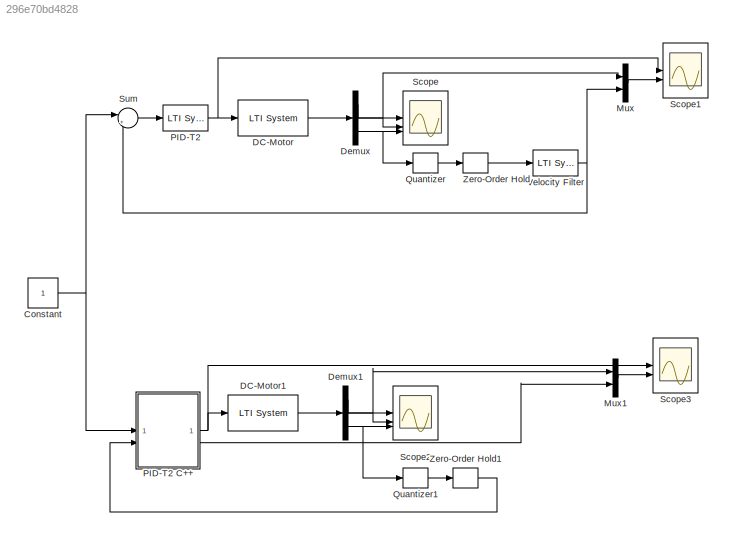
MODEL slx_296e70bd4828
KIND model
CONFIG AbsTol = auto
CONFIG EnableMultiTasking = off
CONFIG FixedStep = auto
CONFIG MaxStep = Ts
CONFIG MinStep = auto
CONFIG RelTol = 1e-3
CONFIG SampleTimeConstraint = Unconstrained
CONFIG SolverName = ode23tb
CONFIG StartTime = 0.0
CONFIG StopTime = 0.3
BLOCK [Constant] Constant
BLOCK [Reference] DC-Motor  REF=cstblocks/LTI System
  SourceBlock = cstblocks/LTI System
  SourceType = LTI Block
BLOCK [Reference] DC-Motor1  REF=cstblocks/LTI System
  SourceBlock = cstblocks/LTI System
  SourceType = LTI Block
BLOCK [Demux] Demux
  Outputs = 3
BLOCK [Demux] Demux1
  Outputs = 3
BLOCK [Mux] Mux
  DisplayOption = bar
  Inputs = 2
BLOCK [Mux] Mux1
  DisplayOption = bar
  Inputs = 2
BLOCK [Reference] PID-T2  REF=cstblocks/LTI System
  SourceBlock = cstblocks/LTI System
  SourceType = LTI Block
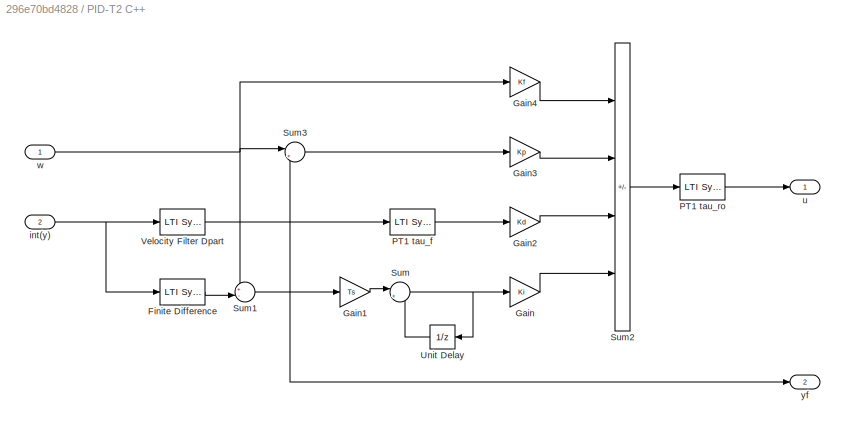
BLOCK [SubSystem] PID-T2 C++
BLOCK [Reference] PID-T2 C++/Finite Difference  REF=cstblocks/LTI System
  SourceBlock = cstblocks/LTI System
  SourceType = LTI Block
BLOCK [Gain] PID-T2 C++/Gain
  Gain = Ki
BLOCK [Gain] PID-T2 C++/Gain1
  Gain = Ts
BLOCK [Gain] PID-T2 C++/Gain2
  Gain = Kd
BLOCK [Gain] PID-T2 C++/Gain3
  Gain = Kp
BLOCK [Gain] PID-T2 C++/Gain4
  Gain = Kf
BLOCK [Reference] PID-T2 C++/PT1 tau_f  REF=cstblocks/LTI System
  SourceBlock = cstblocks/LTI System
  SourceType = LTI Block
BLOCK [Reference] PID-T2 C++/PT1 tau_ro  REF=cstblocks/LTI System
  SourceBlock = cstblocks/LTI System
  SourceType = LTI Block
BLOCK [Sum] PID-T2 C++/Sum
  Inputs = |++
BLOCK [Sum] PID-T2 C++/Sum1
  Inputs = +-|
BLOCK [Sum] PID-T2 C++/Sum2
  IconShape = rectangular
  Inputs = ++-+
BLOCK [Sum] PID-T2 C++/Sum3
  Inputs = |+-
BLOCK [UnitDelay] PID-T2 C++/Unit Delay
  HasFrameUpgradeWarning = on
  NameLocation = top
  SampleTime = Ts
BLOCK [Reference] PID-T2 C++/Velocity Filter Dpart  REF=cstblocks/LTI System
  SourceBlock = cstblocks/LTI System
  SourceType = LTI Block
BLOCK [Inport] PID-T2 C++/int(y)
  Port = 2
BLOCK [Outport] PID-T2 C++/u
BLOCK [Inport] PID-T2 C++/w
BLOCK [Outport] PID-T2 C++/yf
  Port = 2
BLOCK [Quantizer] Quantizer
  Commented = through
  QuantizationInterval = 1 / (gear_ratio*20)
BLOCK [Quantizer] Quantizer1
  Commented = through
  QuantizationInterval = 1 / (gear_ratio*20)
BLOCK [Scope] Scope
  Floating = off
  NumInputPorts = 3
  ScopeSpecificationString = Simulink.scopes.TimeScopeBlockCfg('CurrentConfiguration', extmgr.ConfigurationSet(extmgr.Configuration('Core','General UI',true),extmgr.Configuration('Core','Source UI',true),extmgr.Configuration('Sources','WiredSimulink',true),extmgr.Configuration('Visuals','Time Domain',true,'SerializedDisplays',{struct('MinYLimReal','-0.0295','MaxYLimReal','0.25402','YLabelReal','','MinYLimMag','0.00000','MaxYL...<+2710ch>
BLOCK [Scope] Scope1
  Floating = off
  NumInputPorts = 2
  ScopeSpecificationString = Simulink.scopes.TimeScopeBlockCfg('CurrentConfiguration', extmgr.ConfigurationSet(extmgr.Configuration('Core','General UI',true),extmgr.Configuration('Core','Source UI',true),extmgr.Configuration('Sources','WiredSimulink',true,'DataLoggingVariableName','ScopeData1'),extmgr.Configuration('Visuals','Time Domain',true,'SerializedDisplays',{struct('MinYLimReal','0.76823','MaxYLimReal','2.88378','YLabe...<+2021ch>
BLOCK [Scope] Scope2
  Floating = off
  NumInputPorts = 3
  ScopeSpecificationString = Simulink.scopes.TimeScopeBlockCfg('CurrentConfiguration', extmgr.ConfigurationSet(extmgr.Configuration('Core','General UI',true),extmgr.Configuration('Core','Source UI',true),extmgr.Configuration('Sources','WiredSimulink',true,'DataLoggingVariableName','ScopeData2'),extmgr.Configuration('Visuals','Time Domain',true,'SerializedDisplays',{struct('MinYLimReal','-0.02933','MaxYLimReal','0.25393','YLab...<+2749ch>
BLOCK [Scope] Scope3
  Floating = off
  NumInputPorts = 2
  ScopeSpecificationString = Simulink.scopes.TimeScopeBlockCfg('CurrentConfiguration', extmgr.ConfigurationSet(extmgr.Configuration('Core','General UI',true),extmgr.Configuration('Core','Source UI',true),extmgr.Configuration('Sources','WiredSimulink',true,'DataLoggingVariableName','ScopeData3'),extmgr.Configuration('Visuals','Time Domain',true,'SerializedDisplays',{struct('MinYLimReal','0.72678','MaxYLimReal','3.89062','YLabe...<+2021ch>
BLOCK [Sum] Sum
  Inputs = |+-
BLOCK [Reference] Velocity Filter  REF=cstblocks/LTI System
  SourceBlock = cstblocks/LTI System
  SourceType = LTI Block
BLOCK [ZeroOrderHold] Zero-Order Hold
  SampleTime = Ts
BLOCK [ZeroOrderHold] Zero-Order Hold1
  SampleTime = Ts
NET Constant:1 -> PID-T2 C++:1, Sum:1
LINE DC-Motor1:1 -> Demux1:1
LINE DC-Motor:1 -> Demux:1
LINE Demux1:1 -> Scope2:1
NET Demux1:2 -> Mux1:1, Scope2:2
NET Demux1:3 -> Quantizer1:1, Scope2:3
LINE Demux:1 -> Scope:1
NET Demux:2 -> Mux:1, Scope:2
NET Demux:3 -> Quantizer:1, Scope:3
LINE Mux1:1 -> Scope3:2
LINE Mux:1 -> Scope1:2
LINE PID-T2 C++/Finite Difference:1 -> PID-T2 C++/Sum1:2
LINE PID-T2 C++/Gain1:1 -> PID-T2 C++/Sum:1
LINE PID-T2 C++/Gain2:1 -> PID-T2 C++/Sum2:3
LINE PID-T2 C++/Gain3:1 -> PID-T2 C++/Sum2:2
LINE PID-T2 C++/Gain4:1 -> PID-T2 C++/Sum2:1
LINE PID-T2 C++/Gain:1 -> PID-T2 C++/Sum2:4
LINE PID-T2 C++/PT1 tau_f:1 -> PID-T2 C++/Gain2:1
LINE PID-T2 C++/PT1 tau_ro:1 -> PID-T2 C++/u:1
LINE PID-T2 C++/Sum1:1 -> PID-T2 C++/Gain1:1
LINE PID-T2 C++/Sum2:1 -> PID-T2 C++/PT1 tau_ro:1
LINE PID-T2 C++/Sum3:1 -> PID-T2 C++/Gain3:1
NET PID-T2 C++/Sum:1 -> PID-T2 C++/Gain:1, PID-T2 C++/Unit Delay:1
LINE PID-T2 C++/Unit Delay:1 -> PID-T2 C++/Sum:2
NET PID-T2 C++/Velocity Filter Dpart:1 -> PID-T2 C++/PT1 tau_f:1, PID-T2 C++/Sum3:2, PID-T2 C++/yf:1
NET PID-T2 C++/int(y):1 -> PID-T2 C++/Finite Difference:1, PID-T2 C++/Velocity Filter Dpart:1
NET PID-T2 C++/w:1 -> PID-T2 C++/Gain4:1, PID-T2 C++/Sum1:1, PID-T2 C++/Sum3:1
NET PID-T2 C++:1 -> DC-Motor1:1, Scope3:1
LINE PID-T2 C++:2 -> Mux1:2
NET PID-T2:1 -> DC-Motor:1, Scope1:1
LINE Quantizer1:1 -> Zero-Order Hold1:1
LINE Quantizer:1 -> Zero-Order Hold:1
LINE Sum:1 -> PID-T2:1
NET Velocity Filter:1 -> Mux:2, Sum:2
LINE Zero-Order Hold1:1 -> PID-T2 C++:2
LINE Zero-Order Hold:1 -> Velocity Filter:1
note: NET lines group one-source signal fan-out (src -> all destinations, sorted); 1:1 wires keep LINE
